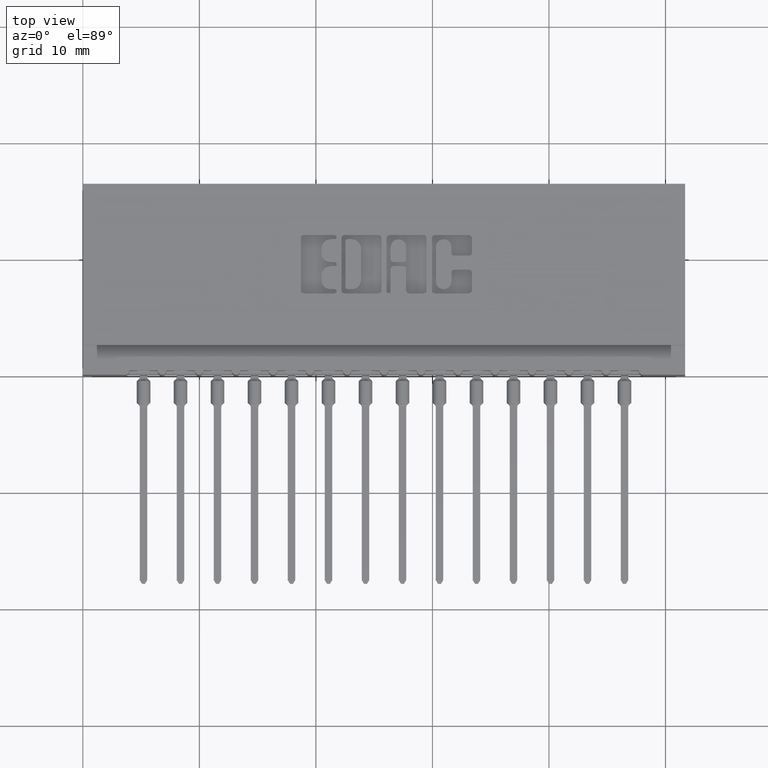
[diagram: clean part render]
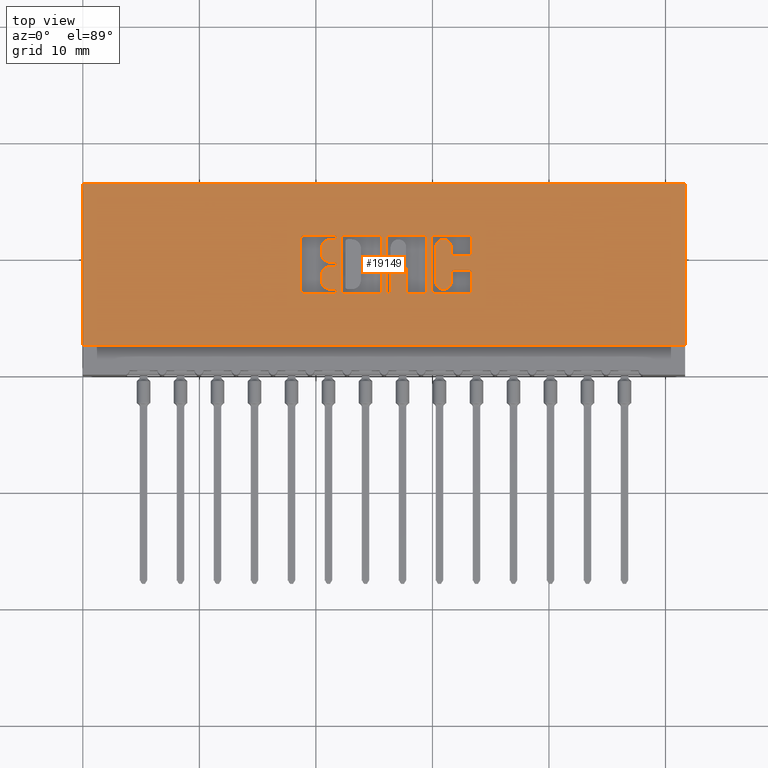
[diagram: same view with one face highlighted and labeled with its STEP entity id]
A machine part, top view. The second image highlights one B-rep face of the part: STEP entity #19149.
In plain terms, the highlighted planar face has unit normal (0, 0, -1).
Its self-contained STEP definition (entity closure, byte-faithful):
#17 = DIRECTION ( 'NONE',  ( -1.000000000000000000, 0.0000000000000000000, 0.0000000000000000000 ) ) ;
#35 = CARTESIAN_POINT ( 'NONE',  ( 1.035904381632127391, 0.4706567020380066912, 0.0000000000000000000 ) ) ;
#109 = ORIENTED_EDGE ( 'NONE', *, *, #229, .F. ) ;
#229 = EDGE_CURVE ( 'NONE', #14462, #15517, #14597, .T. ) ;
#325 = ORIENTED_EDGE ( 'NONE', *, *, #16936, .F. ) ;
#335 = VERTEX_POINT ( 'NONE', #23116 ) ;
#340 = DIRECTION ( 'NONE',  ( -1.000000000000000000, 0.0000000000000000000, 0.0000000000000000000 ) ) ;
#404 = ORIENTED_EDGE ( 'NONE', *, *, #16473, .F. ) ;
#436 = LINE ( 'NONE', #19754, #6121 ) ;
#438 = DIRECTION ( 'NONE',  ( 1.000000000000000000, 0.0000000000000000000, 0.0000000000000000000 ) ) ;
#460 = ORIENTED_EDGE ( 'NONE', *, *, #17493, .T. ) ;
#509 = CIRCLE ( 'NONE', #21210, 0.009815670203805935967 ) ;
#571 = DIRECTION ( 'NONE',  ( 1.000000000000000000, 0.0000000000000000000, 0.0000000000000000000 ) ) ;
#613 = CARTESIAN_POINT ( 'NONE',  ( 1.192464321382818548, 0.4306578459575296502, 0.0000000000000000000 ) ) ;
#683 = ORIENTED_EDGE ( 'NONE', *, *, #23390, .T. ) ;
#706 = CARTESIAN_POINT ( 'NONE',  ( 1.008911288571669118, 0.2841589681657900046, 0.0000000000000000000 ) ) ;
#707 = DIRECTION ( 'NONE',  ( -1.000000000000000000, -0.0000000000000000000, -0.0000000000000000000 ) ) ;
#716 = ORIENTED_EDGE ( 'NONE', *, *, #21715, .F. ) ;
#741 = VERTEX_POINT ( 'NONE', #706 ) ;
#748 = CARTESIAN_POINT ( 'NONE',  ( 2.035000000000000142, 0.6449999999999999067, 0.0000000000000000000 ) ) ;
#778 = VERTEX_POINT ( 'NONE', #17868 ) ;
#844 = VECTOR ( 'NONE', #22642, 39.37007874015748143 ) ;
#887 = AXIS2_PLACEMENT_3D ( 'NONE', #4712, #12462, #10437 ) ;
#975 = CARTESIAN_POINT ( 'NONE',  ( 1.314178631909940220, 0.3440345564089705155, 0.0000000000000000000 ) ) ;
#1009 = CARTESIAN_POINT ( 'NONE',  ( 0.8832707099630102698, 0.4608410318342101575, 0.0000000000000000000 ) ) ;
#1023 = VERTEX_POINT ( 'NONE', #18860 ) ;
#1120 = DIRECTION ( 'NONE',  ( -0.0000000000000000000, -1.000000000000000000, -0.0000000000000000000 ) ) ;
#1129 = DIRECTION ( 'NONE',  ( -0.0000000000000000000, 0.0000000000000000000, 1.000000000000000000 ) ) ;
#1134 = ORIENTED_EDGE ( 'NONE', *, *, #3857, .F. ) ;
#1163 = AXIS2_PLACEMENT_3D ( 'NONE', #16024, #19565, #10033 ) ;
#1211 = CARTESIAN_POINT ( 'NONE',  ( 1.304362961706134305, 0.2841589681657900046, 0.0000000000000000000 ) ) ;
#1255 = VERTEX_POINT ( 'NONE', #7904 ) ;
#1260 = CARTESIAN_POINT ( 'NONE',  ( 1.314178631909972195, 0.4112718973050387139, 0.0000000000000000000 ) ) ;
#1272 = LINE ( 'NONE', #4836, #24042 ) ;
#1281 = VERTEX_POINT ( 'NONE', #4977 ) ;
#1310 = CARTESIAN_POINT ( 'NONE',  ( -3.425805886175743989E-14, 0.2880852362472091088, 0.0000000000000000000 ) ) ;
#1344 = DIRECTION ( 'NONE',  ( 1.000000000000000000, 0.0000000000000000000, 0.0000000000000000000 ) ) ;
#1385 = ORIENTED_EDGE ( 'NONE', *, *, #24246, .F. ) ;
#1419 = AXIS2_PLACEMENT_3D ( 'NONE', #11278, #21209, #19034 ) ;
#1453 = DIRECTION ( 'NONE',  ( 1.000000000000000000, 0.0000000000000000000, 0.0000000000000000000 ) ) ;
#1511 = ORIENTED_EDGE ( 'NONE', *, *, #13187, .F. ) ;
#1720 = CARTESIAN_POINT ( 'NONE',  ( 1.304362961706153179, 0.3440345564089705155, 0.0000000000000000000 ) ) ;
#1741 = CARTESIAN_POINT ( 'NONE',  ( 0.8506336065353100606, 0.3793709691426839226, 0.0000000000000000000 ) ) ;
#1744 = DIRECTION ( 'NONE',  ( 1.000000000000000000, 0.0000000000000000000, 0.0000000000000000000 ) ) ;
#1756 = EDGE_CURVE ( 'NONE', #9989, #1023, #15081, .T. ) ;
#1792 = LINE ( 'NONE', #3563, #16624 ) ;
#1847 = AXIS2_PLACEMENT_3D ( 'NONE', #8691, #16453, #3088 ) ;
#1901 = DIRECTION ( 'NONE',  ( -0.0000000000000000000, 0.0000000000000000000, 1.000000000000000000 ) ) ;
#2082 = AXIS2_PLACEMENT_3D ( 'NONE', #6852, #12702, #22507 ) ;
#2092 = VERTEX_POINT ( 'NONE', #6414 ) ;
#2111 = EDGE_CURVE ( 'NONE', #18306, #19352, #6167, .T. ) ;
#2150 = FACE_OUTER_BOUND ( 'NONE', #22561, .T. ) ;
#2166 = DIRECTION ( 'NONE',  ( -1.000000000000000000, -3.530861605407645268E-14, 0.0000000000000000000 ) ) ;
#2308 = CARTESIAN_POINT ( 'NONE',  ( 0.8057269153529096339, 0.4107811137948584324, 0.0000000000000000000 ) ) ;
#2326 = DIRECTION ( 'NONE',  ( -0.0000000000000000000, 0.0000000000000000000, 1.000000000000000000 ) ) ;
#2400 = CARTESIAN_POINT ( 'NONE',  ( 0.8734550397591692716, 0.4608410318342101575, 0.0000000000000000000 ) ) ;
#2484 = DIRECTION ( 'NONE',  ( 1.000000000000000000, 0.0000000000000000000, 0.0000000000000000000 ) ) ;
#2513 = DIRECTION ( 'NONE',  ( -0.0000000000000000000, 0.0000000000000000000, 1.000000000000000000 ) ) ;
#2596 = DIRECTION ( 'NONE',  ( 0.0000000000000000000, 1.000000000000000000, -0.0000000000000000000 ) ) ;
#2738 = ORIENTED_EDGE ( 'NONE', *, *, #11888, .T. ) ;
#2820 = VECTOR ( 'NONE', #1120, 39.37007874015748143 ) ;
#2827 = LINE ( 'NONE', #14643, #21955 ) ;
#2860 = ORIENTED_EDGE ( 'NONE', *, *, #21326, .F. ) ;
#2956 = EDGE_CURVE ( 'NONE', #2092, #17873, #21491, .T. ) ;
#2961 = CARTESIAN_POINT ( 'NONE',  ( 0.8506336065353513609, 0.4706567020380327815, 0.0000000000000000000 ) ) ;
#2988 = VERTEX_POINT ( 'NONE', #1260 ) ;
#2997 = CARTESIAN_POINT ( 'NONE',  ( 1.192464321382818548, 0.3143421540424530258, 0.0000000000000000000 ) ) ;
#3088 = DIRECTION ( 'NONE',  ( 1.000000000000000000, 0.0000000000000000000, 0.0000000000000000000 ) ) ;
#3103 = LINE ( 'NONE', #3974, #16997 ) ;
#3131 = CARTESIAN_POINT ( 'NONE',  ( 1.244978156973166161, 0.4112718973050452642, 0.0000000000000000000 ) ) ;
#3201 = EDGE_CURVE ( 'NONE', #23419, #14627, #19525, .T. ) ;
#3203 = VERTEX_POINT ( 'NONE', #20709 ) ;
#3301 = VERTEX_POINT ( 'NONE', #17528 ) ;
#3303 = DIRECTION ( 'NONE',  ( -1.000000000000000000, 0.0000000000000000000, 0.0000000000000000000 ) ) ;
#3381 = CARTESIAN_POINT ( 'NONE',  ( 0.8057269153529278416, 0.3194953808994904221, 0.0000000000000000000 ) ) ;
#3401 = CARTESIAN_POINT ( 'NONE',  ( 1.304362961706166946, 0.4014562271012335204, 0.0000000000000000000 ) ) ;
#3427 = LINE ( 'NONE', #10925, #17373 ) ;
#3440 = DIRECTION ( 'NONE',  ( 1.000000000000000000, 0.0000000000000000000, 0.0000000000000000000 ) ) ;
#3476 = CARTESIAN_POINT ( 'NONE',  ( 0.0000000000000000000, 0.1000000000000000056, 0.0000000000000000000 ) ) ;
#3480 = CARTESIAN_POINT ( 'NONE',  ( 1.254793827176966969, 0.3440345564089696273, 0.0000000000000000000 ) ) ;
#3563 = CARTESIAN_POINT ( 'NONE',  ( 1.026088711428331024, 0.0000000000000000000, 0.0000000000000000000 ) ) ;
#3615 = VERTEX_POINT ( 'NONE', #4495 ) ;
#3682 = VECTOR ( 'NONE', #11130, 39.37007874015748143 ) ;
#3742 = DIRECTION ( 'NONE',  ( -1.000000000000000000, 0.0000000000000000000, 0.0000000000000000000 ) ) ;
#3748 = EDGE_CURVE ( 'NONE', #6487, #4584, #21587, .T. ) ;
#3773 = LINE ( 'NONE', #15597, #16186 ) ;
#3857 = EDGE_CURVE ( 'NONE', #19968, #16552, #22864, .T. ) ;
#3974 = CARTESIAN_POINT ( 'NONE',  ( 2.035000000000000142, 0.6449999999999999067, 0.0000000000000000000 ) ) ;
#3981 = EDGE_CURVE ( 'NONE', #21643, #16573, #4942, .T. ) ;
#4028 = DIRECTION ( 'NONE',  ( 0.0000000000000000000, 1.000000000000000000, -0.0000000000000000000 ) ) ;
#4067 = CARTESIAN_POINT ( 'NONE',  ( -1.290985506876488798E-14, 0.3656290308573115766, 0.0000000000000000000 ) ) ;
#4074 = ORIENTED_EDGE ( 'NONE', *, *, #21823, .F. ) ;
#4079 = AXIS2_PLACEMENT_3D ( 'NONE', #13474, #1901, #17677 ) ;
#4137 = LINE ( 'NONE', #13790, #20096 ) ;
#4320 = CARTESIAN_POINT ( 'NONE',  ( 1.026088711428331024, 0.4608410318342101575, 0.0000000000000000000 ) ) ;
#4356 = VERTEX_POINT ( 'NONE', #24621 ) ;
#4444 = VECTOR ( 'NONE', #340, 39.37007874015748143 ) ;
#4495 = CARTESIAN_POINT ( 'NONE',  ( 1.151729290037010633, 0.2743432979619847001, 0.0000000000000000000 ) ) ;
#4497 = VECTOR ( 'NONE', #24901, 39.37007874015748143 ) ;
#4516 = CARTESIAN_POINT ( 'NONE',  ( 1.151729290037010633, 0.2841589681657809008, 0.0000000000000000000 ) ) ;
#4564 = CIRCLE ( 'NONE', #4957, 0.03141014465221578927 ) ;
#4584 = VERTEX_POINT ( 'NONE', #10494 ) ;
#4633 = AXIS2_PLACEMENT_3D ( 'NONE', #23833, #6397, #438 ) ;
#4641 = DIRECTION ( 'NONE',  ( 0.0000000000000000000, -1.000000000000000000, 0.0000000000000000000 ) ) ;
#4712 = CARTESIAN_POINT ( 'NONE',  ( 1.049646319917450388, 0.3558133606535456295, 0.0000000000000000000 ) ) ;
#4799 = DIRECTION ( 'NONE',  ( -0.0000000000000000000, 0.0000000000000000000, 1.000000000000000000 ) ) ;
#4837 = EDGE_CURVE ( 'NONE', #15517, #20282, #3103, .T. ) ;
#4836 = CARTESIAN_POINT ( 'NONE',  ( 1.192464321382818548, 0.0000000000000000000, 0.0000000000000000000 ) ) ;
#4941 = LINE ( 'NONE', #5069, #2820 ) ;
#4942 = CIRCLE ( 'NONE', #17575, 0.009815670203795690690 ) ;
#4957 = AXIS2_PLACEMENT_3D ( 'NONE', #13003, #5137, #20521 ) ;
#4977 = CARTESIAN_POINT ( 'NONE',  ( 0.8371370600051254440, 0.4569147637527357642, 0.0000000000000000000 ) ) ;
#5069 = CARTESIAN_POINT ( 'NONE',  ( 0.0000000000000000000, 0.6449999999999999067, 0.0000000000000000000 ) ) ;
#5137 = DIRECTION ( 'NONE',  ( -0.0000000000000000000, 0.0000000000000000000, 1.000000000000000000 ) ) ;
#5199 = DIRECTION ( 'NONE',  ( -0.0000000000000000000, 0.0000000000000000000, 1.000000000000000000 ) ) ;
#5200 = VERTEX_POINT ( 'NONE', #9172 ) ;
#5254 = ORIENTED_EDGE ( 'NONE', *, *, #20702, .F. ) ;
#5346 = EDGE_CURVE ( 'NONE', #8530, #5200, #23628, .T. ) ;
#5383 = ORIENTED_EDGE ( 'NONE', *, *, #18476, .F. ) ;
#5562 = EDGE_CURVE ( 'NONE', #17873, #18773, #11439, .T. ) ;
#5584 = ORIENTED_EDGE ( 'NONE', *, *, #2111, .F. ) ;
#5606 = EDGE_CURVE ( 'NONE', #12300, #12085, #9817, .T. ) ;
#5620 = CARTESIAN_POINT ( 'NONE',  ( 2.035000000000000142, 0.1000000000000000056, 0.0000000000000000000 ) ) ;
#5714 = VECTOR ( 'NONE', #21179, 39.37007874015748143 ) ;
#5776 = CARTESIAN_POINT ( 'NONE',  ( 0.8734550397591692716, 0.2841589681657900046, 0.0000000000000000000 ) ) ;
#5832 = CARTESIAN_POINT ( 'NONE',  ( 1.314178631909972195, 0.4608410318341948919, 0.0000000000000000000 ) ) ;
#5862 = EDGE_CURVE ( 'NONE', #3301, #25140, #509, .T. ) ;
#5932 = DIRECTION ( 'NONE',  ( -0.0000000000000000000, 0.0000000000000000000, 1.000000000000000000 ) ) ;
#6064 = VERTEX_POINT ( 'NONE', #3131 ) ;
#6099 = DIRECTION ( 'NONE',  ( 1.000000000000000000, 0.0000000000000000000, 0.0000000000000000000 ) ) ;
#6121 = VECTOR ( 'NONE', #2596, 39.37007874015748143 ) ;
#6166 = AXIS2_PLACEMENT_3D ( 'NONE', #24295, #8911, #3440 ) ;
#6167 = LINE ( 'NONE', #13792, #10420 ) ;
#6173 = ORIENTED_EDGE ( 'NONE', *, *, #21425, .T. ) ;
#6185 = DIRECTION ( 'NONE',  ( 1.000000000000000000, 0.0000000000000000000, 0.0000000000000000000 ) ) ;
#6314 = CARTESIAN_POINT ( 'NONE',  ( -1.976217237646387043E-15, 0.2743432979619796486, 0.0000000000000000000 ) ) ;
#6341 = ORIENTED_EDGE ( 'NONE', *, *, #5862, .F. ) ;
#6350 = ORIENTED_EDGE ( 'NONE', *, *, #23764, .F. ) ;
#6397 = DIRECTION ( 'NONE',  ( -0.0000000000000000000, 0.0000000000000000000, 1.000000000000000000 ) ) ;
#6410 = ORIENTED_EDGE ( 'NONE', *, *, #8596, .F. ) ;
#6414 = CARTESIAN_POINT ( 'NONE',  ( 1.082528815100188169, 0.3656290308573498238, 0.0000000000000000000 ) ) ;
#6447 = VECTOR ( 'NONE', #571, 39.37007874015748143 ) ;
#6487 = VERTEX_POINT ( 'NONE', #7515 ) ;
#6553 = VECTOR ( 'NONE', #4028, 39.37007874015748143 ) ;
#6562 = CARTESIAN_POINT ( 'NONE',  ( 0.0000000000000000000, 0.3793709691426839226, 0.0000000000000000000 ) ) ;
#6601 = ORIENTED_EDGE ( 'NONE', *, *, #24822, .T. ) ;
#6602 = ORIENTED_EDGE ( 'NONE', *, *, #10854, .F. ) ;
#6852 = CARTESIAN_POINT ( 'NONE',  ( 1.304362961706132085, 0.4608410318342109901, 0.0000000000000000000 ) ) ;
#6855 = ORIENTED_EDGE ( 'NONE', *, *, #10706, .F. ) ;
#6877 = DIRECTION ( 'NONE',  ( 1.000000000000000000, 0.0000000000000000000, 0.0000000000000000000 ) ) ;
#6911 = AXIS2_PLACEMENT_3D ( 'NONE', #21124, #13488, #6099 ) ;
#7021 = CARTESIAN_POINT ( 'NONE',  ( 0.8371370600051096789, 0.2880852362473086403, 0.0000000000000000000 ) ) ;
#7045 = ORIENTED_EDGE ( 'NONE', *, *, #23882, .F. ) ;
#7077 = DIRECTION ( 'NONE',  ( 0.0000000000000000000, 1.000000000000000000, -0.0000000000000000000 ) ) ;
#7093 = ORIENTED_EDGE ( 'NONE', *, *, #1756, .F. ) ;
#7120 = EDGE_CURVE ( 'NONE', #741, #19588, #9495, .T. ) ;
#7273 = CIRCLE ( 'NONE', #9709, 0.03141014465217440571 ) ;
#7373 = DIRECTION ( 'NONE',  ( 0.0000000000000000000, 1.000000000000000000, -0.0000000000000000000 ) ) ;
#7377 = CIRCLE ( 'NONE', #6166, 0.009815670203822599721 ) ;
#7515 = CARTESIAN_POINT ( 'NONE',  ( 1.254793827176966969, 0.3538502266127576124, 0.0000000000000000000 ) ) ;
#7535 = CARTESIAN_POINT ( 'NONE',  ( 1.188538053301299469, 0.4706567020380511002, 0.0000000000000000000 ) ) ;
#7660 = DIRECTION ( 'NONE',  ( -0.0000000000000000000, -1.000000000000000000, -0.0000000000000000000 ) ) ;
#7753 = EDGE_CURVE ( 'NONE', #18670, #10439, #15136, .T. ) ;
#7800 = LINE ( 'NONE', #21672, #6447 ) ;
#7823 = EDGE_CURVE ( 'NONE', #4584, #14537, #23022, .T. ) ;
#7897 = CIRCLE ( 'NONE', #12781, 0.02625691779517380642 ) ;
#7904 = CARTESIAN_POINT ( 'NONE',  ( 1.188538053301265274, 0.2743432979619832568, 0.0000000000000000000 ) ) ;
#7950 = EDGE_CURVE ( 'NONE', #10439, #2092, #10584, .T. ) ;
#8091 = VECTOR ( 'NONE', #7077, 39.37007874015748143 ) ;
#8121 = PLANE ( 'NONE',  #1163 ) ;
#8141 = ORIENTED_EDGE ( 'NONE', *, *, #5562, .T. ) ;
#8297 = LINE ( 'NONE', #8543, #15100 ) ;
#8368 = EDGE_LOOP ( 'NONE', ( #21116, #5584, #11753, #6855, #6601, #24750, #683, #17806, #12428, #404, #6350, #5383, #10284, #716, #13989, #25086, #17328, #13864, #17070, #17253 ) ) ;
#8485 = VERTEX_POINT ( 'NONE', #613 ) ;
#8509 = DIRECTION ( 'NONE',  ( 1.000000000000000000, 0.0000000000000000000, 0.0000000000000000000 ) ) ;
#8530 = VERTEX_POINT ( 'NONE', #16242 ) ;
#8543 = CARTESIAN_POINT ( 'NONE',  ( -0.0000000000000000000, 0.2743432979619832568, 0.0000000000000000000 ) ) ;
#8570 = ORIENTED_EDGE ( 'NONE', *, *, #24690, .T. ) ;
#8596 = EDGE_CURVE ( 'NONE', #16007, #24718, #11003, .T. ) ;
#8640 = CARTESIAN_POINT ( 'NONE',  ( 1.218721239177992244, 0.4306578459575296502, 0.0000000000000000000 ) ) ;
#8691 = CARTESIAN_POINT ( 'NONE',  ( 0.8371370600050840327, 0.3342188862052006271, 0.0000000000000000000 ) ) ;
#8722 = CARTESIAN_POINT ( 'NONE',  ( 1.008911288571669118, 0.4608410318342101575, 0.0000000000000000000 ) ) ;
#8756 = DIRECTION ( 'NONE',  ( -0.0000000000000000000, 0.0000000000000000000, 1.000000000000000000 ) ) ;
#8770 = EDGE_CURVE ( 'NONE', #12566, #3301, #15700, .T. ) ;
#8785 = EDGE_CURVE ( 'NONE', #18773, #14627, #21305, .T. ) ;
#8911 = DIRECTION ( 'NONE',  ( -0.0000000000000000000, 0.0000000000000000000, 1.000000000000000000 ) ) ;
#8963 = DIRECTION ( 'NONE',  ( -0.0000000000000000000, 0.0000000000000000000, 1.000000000000000000 ) ) ;
#8974 = AXIS2_PLACEMENT_3D ( 'NONE', #18352, #12000, #12252 ) ;
#9034 = ORIENTED_EDGE ( 'NONE', *, *, #22154, .F. ) ;
#9078 = ORIENTED_EDGE ( 'NONE', *, *, #5346, .F. ) ;
#9105 = VERTEX_POINT ( 'NONE', #3476 ) ;
#9144 = ORIENTED_EDGE ( 'NONE', *, *, #8785, .T. ) ;
#9148 = DIRECTION ( 'NONE',  ( 0.0000000000000000000, 1.000000000000000000, -0.0000000000000000000 ) ) ;
#9166 = EDGE_CURVE ( 'NONE', #17629, #16179, #15543, .T. ) ;
#9172 = CARTESIAN_POINT ( 'NONE',  ( 0.8506336064154144117, 0.2880852362473102501, 0.0000000000000000000 ) ) ;
#9173 = VERTEX_POINT ( 'NONE', #7535 ) ;
#9178 = CIRCLE ( 'NONE', #14467, 0.009815670203841039831 ) ;
#9208 = VERTEX_POINT ( 'NONE', #35 ) ;
#9271 = VECTOR ( 'NONE', #7373, 39.37007874015748143 ) ;
#9385 = VERTEX_POINT ( 'NONE', #12599 ) ;
#9405 = AXIS2_PLACEMENT_3D ( 'NONE', #10180, #19716, #15909 ) ;
#9495 = LINE ( 'NONE', #21198, #8091 ) ;
#9525 = AXIS2_PLACEMENT_3D ( 'NONE', #12192, #10032, #10535 ) ;
#9580 = EDGE_CURVE ( 'NONE', #23419, #13675, #1792, .T. ) ;
#9648 = CARTESIAN_POINT ( 'NONE',  ( 1.304362961706166946, 0.4112718973050387139, 0.0000000000000000000 ) ) ;
#9709 = AXIS2_PLACEMENT_3D ( 'NONE', #19793, #2513, #6185 ) ;
#9754 = VECTOR ( 'NONE', #19001, 39.37007874015748143 ) ;
#9817 = CIRCLE ( 'NONE', #2082, 0.009815670203840221042 ) ;
#9827 = CARTESIAN_POINT ( 'NONE',  ( 1.102160155507785788, 0.2743432979619847001, 0.0000000000000000000 ) ) ;
#9886 = AXIS2_PLACEMENT_3D ( 'NONE', #23113, #11533, #19160 ) ;
#9989 = VERTEX_POINT ( 'NONE', #19264 ) ;
#10030 = ORIENTED_EDGE ( 'NONE', *, *, #4837, .F. ) ;
#10032 = DIRECTION ( 'NONE',  ( -0.0000000000000000000, 0.0000000000000000000, 1.000000000000000000 ) ) ;
#10033 = DIRECTION ( 'NONE',  ( -1.000000000000000000, 0.0000000000000000000, -0.0000000000000000000 ) ) ;
#10086 = VERTEX_POINT ( 'NONE', #14315 ) ;
#10159 = DIRECTION ( 'NONE',  ( 1.000000000000000000, 0.0000000000000000000, 0.0000000000000000000 ) ) ;
#10180 = CARTESIAN_POINT ( 'NONE',  ( 0.8506336065353355957, 0.2812142671046480302, 0.0000000000000000000 ) ) ;
#10284 = ORIENTED_EDGE ( 'NONE', *, *, #17294, .F. ) ;
#10392 = CARTESIAN_POINT ( 'NONE',  ( 1.254793827176977628, 0.4014562271012336869, 0.0000000000000000000 ) ) ;
#10420 = VECTOR ( 'NONE', #13927, 39.37007874015748143 ) ;
#10437 = DIRECTION ( 'NONE',  ( 1.000000000000000000, 0.0000000000000000000, 0.0000000000000000000 ) ) ;
#10439 = VERTEX_POINT ( 'NONE', #24966 ) ;
#10494 = CARTESIAN_POINT ( 'NONE',  ( 1.244978156973179262, 0.3440345564089687391, 0.0000000000000000000 ) ) ;
#10530 = DIRECTION ( 'NONE',  ( -0.0000000000000000000, 0.0000000000000000000, 1.000000000000000000 ) ) ;
#10535 = DIRECTION ( 'NONE',  ( 1.000000000000000000, 0.0000000000000000000, 0.0000000000000000000 ) ) ;
#10553 = ORIENTED_EDGE ( 'NONE', *, *, #18144, .T. ) ;
#10584 = CIRCLE ( 'NONE', #4079, 0.009815670203796920609 ) ;
#10704 = AXIS2_PLACEMENT_3D ( 'NONE', #1009, #8756, #18919 ) ;
#10706 = EDGE_CURVE ( 'NONE', #23683, #6064, #2827, .T. ) ;
#10854 = EDGE_CURVE ( 'NONE', #17594, #13397, #20314, .T. ) ;
#10921 = CIRCLE ( 'NONE', #24344, 0.009815670203811535655 ) ;
#10925 = CARTESIAN_POINT ( 'NONE',  ( 0.0000000000000000000, 0.3538502266127576124, 0.0000000000000000000 ) ) ;
#10961 = DIRECTION ( 'NONE',  ( -1.000000000000000000, -1.189163988687022540E-13, 0.0000000000000000000 ) ) ;
#10971 = CARTESIAN_POINT ( 'NONE',  ( 0.7463421106199185084, 0.2743432979619850332, 0.0000000000000000000 ) ) ;
#11003 = LINE ( 'NONE', #14570, #3682 ) ;
#11004 = CIRCLE ( 'NONE', #8974, 0.03141014465218178175 ) ;
#11130 = DIRECTION ( 'NONE',  ( -1.000000000000000000, 0.0000000000000000000, 0.0000000000000000000 ) ) ;
#11162 = EDGE_CURVE ( 'NONE', #16552, #4356, #19175, .T. ) ;
#11240 = ORIENTED_EDGE ( 'NONE', *, *, #23212, .F. ) ;
#11250 = CARTESIAN_POINT ( 'NONE',  ( 0.0000000000000000000, 0.4706567020380511002, 0.0000000000000000000 ) ) ;
#11256 = CARTESIAN_POINT ( 'NONE',  ( 0.7365264404161154799, 0.0000000000000000000, 0.0000000000000000000 ) ) ;
#11278 = CARTESIAN_POINT ( 'NONE',  ( 1.218721239177998905, 0.3143421540424530258, 0.0000000000000000000 ) ) ;
#11371 = CARTESIAN_POINT ( 'NONE',  ( 0.0000000000000000000, 0.4706567020380327815, 0.0000000000000000000 ) ) ;
#11439 = CIRCLE ( 'NONE', #887, 0.009815670203803203778 ) ;
#11509 = EDGE_CURVE ( 'NONE', #24828, #17620, #11004, .T. ) ;
#11533 = DIRECTION ( 'NONE',  ( -0.0000000000000000000, 0.0000000000000000000, 1.000000000000000000 ) ) ;
#11535 = VECTOR ( 'NONE', #17551, 39.37007874015748143 ) ;
#11563 = EDGE_CURVE ( 'NONE', #2988, #12300, #436, .T. ) ;
#11665 = ORIENTED_EDGE ( 'NONE', *, *, #15286, .F. ) ;
#11712 = DIRECTION ( 'NONE',  ( 0.0000000000000000000, -1.000000000000000000, 0.0000000000000000000 ) ) ;
#11753 = ORIENTED_EDGE ( 'NONE', *, *, #18039, .F. ) ;
#11780 = CARTESIAN_POINT ( 'NONE',  ( 0.8506336065353355957, 0.2812142671046480302, 0.0000000000000000000 ) ) ;
#11813 = ORIENTED_EDGE ( 'NONE', *, *, #14325, .F. ) ;
#11888 = EDGE_CURVE ( 'NONE', #3615, #22746, #13738, .T. ) ;
#11890 = DIRECTION ( 'NONE',  ( 0.0000000000000000000, 1.000000000000000000, -0.0000000000000000000 ) ) ;
#11912 = CARTESIAN_POINT ( 'NONE',  ( 0.8575045756779736683, 0.3725000000000204259, 0.0000000000000000000 ) ) ;
#11922 = CIRCLE ( 'NONE', #9886, 0.009815670203806754757 ) ;
#12000 = DIRECTION ( 'NONE',  ( -0.0000000000000000000, 0.0000000000000000000, 1.000000000000000000 ) ) ;
#12057 = ORIENTED_EDGE ( 'NONE', *, *, #18405, .F. ) ;
#12085 = VERTEX_POINT ( 'NONE', #18321 ) ;
#12152 = EDGE_CURVE ( 'NONE', #17195, #8485, #1272, .T. ) ;
#12192 = CARTESIAN_POINT ( 'NONE',  ( 1.188538053301299469, 0.4608410318342101575, 0.0000000000000000000 ) ) ;
#12252 = DIRECTION ( 'NONE',  ( 1.000000000000000000, 0.0000000000000000000, 0.0000000000000000000 ) ) ;
#12300 = VERTEX_POINT ( 'NONE', #5832 ) ;
#12360 = DIRECTION ( 'NONE',  ( 1.000000000000000000, 0.0000000000000000000, 0.0000000000000000000 ) ) ;
#12394 = DIRECTION ( 'NONE',  ( 1.000000000000000000, 0.0000000000000000000, 0.0000000000000000000 ) ) ;
#12417 = CARTESIAN_POINT ( 'NONE',  ( 1.026088711428331024, 0.2812142671046480302, 0.0000000000000000000 ) ) ;
#12428 = ORIENTED_EDGE ( 'NONE', *, *, #3748, .F. ) ;
#12462 = DIRECTION ( 'NONE',  ( -0.0000000000000000000, 0.0000000000000000000, 1.000000000000000000 ) ) ;
#12506 = ORIENTED_EDGE ( 'NONE', *, *, #3201, .F. ) ;
#12530 = CARTESIAN_POINT ( 'NONE',  ( 1.314178631909940220, 0.0000000000000000000, 0.0000000000000000000 ) ) ;
#12550 = DIRECTION ( 'NONE',  ( 1.000000000000000000, 0.0000000000000000000, 0.0000000000000000000 ) ) ;
#12566 = VERTEX_POINT ( 'NONE', #16753 ) ;
#12599 = CARTESIAN_POINT ( 'NONE',  ( 0.8506336064154144117, 0.2743432979619857548, 0.0000000000000000000 ) ) ;
#12624 = EDGE_CURVE ( 'NONE', #22862, #17594, #24385, .T. ) ;
#12643 = VECTOR ( 'NONE', #17, 39.37007874015748143 ) ;
#12677 = CARTESIAN_POINT ( 'NONE',  ( 0.8506336065353513609, 0.4637857328953863267, 0.0000000000000000000 ) ) ;
#12693 = VERTEX_POINT ( 'NONE', #1741 ) ;
#12702 = DIRECTION ( 'NONE',  ( -0.0000000000000000000, 0.0000000000000000000, 1.000000000000000000 ) ) ;
#12767 = CIRCLE ( 'NONE', #16823, 0.006870969142663594688 ) ;
#12781 = AXIS2_PLACEMENT_3D ( 'NONE', #8640, #24036, #8509 ) ;
#12811 = DIRECTION ( 'NONE',  ( 1.000000000000000000, 0.0000000000000000000, 0.0000000000000000000 ) ) ;
#12827 = ORIENTED_EDGE ( 'NONE', *, *, #25087, .F. ) ;
#12943 = DIRECTION ( 'NONE',  ( 1.000000000000000000, 0.0000000000000000000, 0.0000000000000000000 ) ) ;
#13003 = CARTESIAN_POINT ( 'NONE',  ( 0.8371370600051254440, 0.4255046191005198430, 0.0000000000000000000 ) ) ;
#13127 = CARTESIAN_POINT ( 'NONE',  ( 0.8371370600050840327, 0.3793709691426839226, 0.0000000000000000000 ) ) ;
#13173 = VECTOR ( 'NONE', #11712, 39.37007874015748143 ) ;
#13187 = EDGE_CURVE ( 'NONE', #4356, #741, #16807, .T. ) ;
#13397 = VERTEX_POINT ( 'NONE', #2961 ) ;
#13474 = CARTESIAN_POINT ( 'NONE',  ( 1.082528815100187725, 0.3558133606535528459, 0.0000000000000000000 ) ) ;
#13488 = DIRECTION ( 'NONE',  ( -0.0000000000000000000, 0.0000000000000000000, 1.000000000000000000 ) ) ;
#13533 = DIRECTION ( 'NONE',  ( -0.0000000000000000000, 0.0000000000000000000, 1.000000000000000000 ) ) ;
#13593 = DIRECTION ( 'NONE',  ( -0.0000000000000000000, 0.0000000000000000000, 1.000000000000000000 ) ) ;
#13597 = CARTESIAN_POINT ( 'NONE',  ( 1.161544960240806779, 0.0000000000000000000, 0.0000000000000000000 ) ) ;
#13675 = VERTEX_POINT ( 'NONE', #4320 ) ;
#13676 = EDGE_CURVE ( 'NONE', #9173, #17629, #21713, .T. ) ;
#13688 = DIRECTION ( 'NONE',  ( 1.000000000000000000, 0.0000000000000000000, 0.0000000000000000000 ) ) ;
#13713 = FACE_BOUND ( 'NONE', #19807, .T. ) ;
#13738 = LINE ( 'NONE', #21504, #12643 ) ;
#13742 = ORIENTED_EDGE ( 'NONE', *, *, #11509, .T. ) ;
#13790 = CARTESIAN_POINT ( 'NONE',  ( 0.8057269153529096339, 0.0000000000000000000, 0.0000000000000000000 ) ) ;
#13792 = CARTESIAN_POINT ( 'NONE',  ( -0.0000000000000000000, 0.4014562271012336869, 0.0000000000000000000 ) ) ;
#13855 = EDGE_CURVE ( 'NONE', #18380, #12693, #12767, .T. ) ;
#13864 = ORIENTED_EDGE ( 'NONE', *, *, #19824, .F. ) ;
#13905 = AXIS2_PLACEMENT_3D ( 'NONE', #24523, #1129, #18672 ) ;
#13927 = DIRECTION ( 'NONE',  ( 1.000000000000000000, 0.0000000000000000000, 0.0000000000000000000 ) ) ;
#13989 = ORIENTED_EDGE ( 'NONE', *, *, #23263, .F. ) ;
#14089 = VERTEX_POINT ( 'NONE', #22088 ) ;
#14173 = CARTESIAN_POINT ( 'NONE',  ( 1.102160155507788009, 0.2841589681657878952, 0.0000000000000000000 ) ) ;
#14176 = LINE ( 'NONE', #18121, #24023 ) ;
#14201 = LINE ( 'NONE', #6562, #4444 ) ;
#14232 = CARTESIAN_POINT ( 'NONE',  ( 1.049646319917450388, 0.3656290308573487136, 0.0000000000000000000 ) ) ;
#14253 = AXIS2_PLACEMENT_3D ( 'NONE', #12677, #10530, #18286 ) ;
#14315 = CARTESIAN_POINT ( 'NONE',  ( 0.8057269153529096339, 0.4255046191005198430, 0.0000000000000000000 ) ) ;
#14325 = EDGE_CURVE ( 'NONE', #13397, #3203, #17350, .T. ) ;
#14328 = DIRECTION ( 'NONE',  ( 1.000000000000000000, 7.203446383881645102E-15, 0.0000000000000000000 ) ) ;
#14335 = ORIENTED_EDGE ( 'NONE', *, *, #21224, .F. ) ;
#14437 = VECTOR ( 'NONE', #10961, 39.37007874015748143 ) ;
#14462 = VERTEX_POINT ( 'NONE', #18111 ) ;
#14467 = AXIS2_PLACEMENT_3D ( 'NONE', #22358, #4799, #12550 ) ;
#14496 = ORIENTED_EDGE ( 'NONE', *, *, #18385, .T. ) ;
#14537 = VERTEX_POINT ( 'NONE', #17608 ) ;
#14570 = CARTESIAN_POINT ( 'NONE',  ( 0.0000000000000000000, 0.4706567020380511002, 0.0000000000000000000 ) ) ;
#14597 = LINE ( 'NONE', #22369, #23803 ) ;
#14627 = VERTEX_POINT ( 'NONE', #16565 ) ;
#14635 = EDGE_CURVE ( 'NONE', #5200, #17620, #22184, .T. ) ;
#14643 = CARTESIAN_POINT ( 'NONE',  ( 1.244978156973166161, 0.0000000000000000000, 0.0000000000000000000 ) ) ;
#14679 = EDGE_CURVE ( 'NONE', #9989, #17966, #20115, .T. ) ;
#14686 = AXIS2_PLACEMENT_3D ( 'NONE', #3480, #17085, #1453 ) ;
#14695 = LINE ( 'NONE', #12530, #14956 ) ;
#14783 = CARTESIAN_POINT ( 'NONE',  ( 1.178722383097458692, 0.4608410318342101575, 0.0000000000000000000 ) ) ;
#14863 = CIRCLE ( 'NONE', #22178, 0.009815670203796511215 ) ;
#14870 = ORIENTED_EDGE ( 'NONE', *, *, #9580, .T. ) ;
#14876 = ORIENTED_EDGE ( 'NONE', *, *, #11162, .F. ) ;
#14878 = CARTESIAN_POINT ( 'NONE',  ( 0.8506336065353513609, 0.4569147637527357642, 0.0000000000000000000 ) ) ;
#14956 = VECTOR ( 'NONE', #20546, 39.37007874015748143 ) ;
#15071 = LINE ( 'NONE', #11250, #9754 ) ;
#15081 = LINE ( 'NONE', #22344, #20416 ) ;
#15098 = VERTEX_POINT ( 'NONE', #2400 ) ;
#15100 = VECTOR ( 'NONE', #12360, 39.37007874015748143 ) ;
#15136 = LINE ( 'NONE', #20856, #9271 ) ;
#15286 = EDGE_CURVE ( 'NONE', #9208, #13675, #14863, .T. ) ;
#15367 = ORIENTED_EDGE ( 'NONE', *, *, #7120, .F. ) ;
#15443 = CARTESIAN_POINT ( 'NONE',  ( 1.092344485303984758, 0.2841589681657878952, 0.0000000000000000000 ) ) ;
#15496 = CIRCLE ( 'NONE', #23619, 0.009815670203796237128 ) ;
#15503 = CARTESIAN_POINT ( 'NONE',  ( 0.8832707099629760750, 0.2743432979619832568, 0.0000000000000000000 ) ) ;
#15506 = FACE_BOUND ( 'NONE', #8368, .T. ) ;
#15517 = VERTEX_POINT ( 'NONE', #748 ) ;
#15543 = LINE ( 'NONE', #19474, #21935 ) ;
#15572 = ORIENTED_EDGE ( 'NONE', *, *, #14635, .F. ) ;
#15597 = CARTESIAN_POINT ( 'NONE',  ( -0.0000000000000000000, 0.4569147637527357642, 0.0000000000000000000 ) ) ;
#15604 = CARTESIAN_POINT ( 'NONE',  ( 0.8057269153529278416, 0.0000000000000000000, 0.0000000000000000000 ) ) ;
#15637 = CARTESIAN_POINT ( 'NONE',  ( 0.8832707099630102698, 0.4706567020380511002, 0.0000000000000000000 ) ) ;
#15687 = EDGE_CURVE ( 'NONE', #19588, #16007, #9178, .T. ) ;
#15700 = LINE ( 'NONE', #11256, #5714 ) ;
#15739 = CARTESIAN_POINT ( 'NONE',  ( 0.7463421106199222832, 0.2841589681657900046, 0.0000000000000000000 ) ) ;
#15890 = CARTESIAN_POINT ( 'NONE',  ( 0.8057269153529278416, 0.3342188862052006271, 0.0000000000000000000 ) ) ;
#15909 = DIRECTION ( 'NONE',  ( 1.000000000000000000, 0.0000000000000000000, 0.0000000000000000000 ) ) ;
#16007 = VERTEX_POINT ( 'NONE', #20625 ) ;
#16024 = CARTESIAN_POINT ( 'NONE',  ( 0.0000000000000000000, 0.6449999999999999067, 0.0000000000000000000 ) ) ;
#16160 = ORIENTED_EDGE ( 'NONE', *, *, #14679, .T. ) ;
#16179 = VERTEX_POINT ( 'NONE', #17698 ) ;
#16186 = VECTOR ( 'NONE', #1744, 39.37007874015748143 ) ;
#16242 = CARTESIAN_POINT ( 'NONE',  ( 0.8575045756779977602, 0.2812142671046480302, 0.0000000000000000000 ) ) ;
#16311 = DIRECTION ( 'NONE',  ( -0.0000000000000000000, 0.0000000000000000000, 1.000000000000000000 ) ) ;
#16388 = DIRECTION ( 'NONE',  ( -0.0000000000000000000, 0.0000000000000000000, 1.000000000000000000 ) ) ;
#16413 = AXIS2_PLACEMENT_3D ( 'NONE', #1720, #13533, #21418 ) ;
#16453 = DIRECTION ( 'NONE',  ( -0.0000000000000000000, 0.0000000000000000000, 1.000000000000000000 ) ) ;
#16459 = DIRECTION ( 'NONE',  ( -0.0000000000000000000, 0.0000000000000000000, 1.000000000000000000 ) ) ;
#16473 = EDGE_CURVE ( 'NONE', #335, #6487, #3427, .T. ) ;
#16552 = VERTEX_POINT ( 'NONE', #15503 ) ;
#16565 = CARTESIAN_POINT ( 'NONE',  ( 1.039830649713646915, 0.2812142671046480302, 0.0000000000000000000 ) ) ;
#16573 = VERTEX_POINT ( 'NONE', #17411 ) ;
#16624 = VECTOR ( 'NONE', #16924, 39.37007874015748143 ) ;
#16750 = CIRCLE ( 'NONE', #13905, 0.006870969142663594688 ) ;
#16753 = CARTESIAN_POINT ( 'NONE',  ( 0.7365264404161154799, 0.4608410318342101575, 0.0000000000000000000 ) ) ;
#16783 = CARTESIAN_POINT ( 'NONE',  ( 1.035904381632127391, 0.4608410318342101575, 0.0000000000000000000 ) ) ;
#16807 = CIRCLE ( 'NONE', #4633, 0.009815670203806754757 ) ;
#16823 = AXIS2_PLACEMENT_3D ( 'NONE', #18539, #16388, #24142 ) ;
#16924 = DIRECTION ( 'NONE',  ( 0.0000000000000000000, 1.000000000000000000, -0.0000000000000000000 ) ) ;
#16936 = EDGE_CURVE ( 'NONE', #1281, #22862, #3773, .T. ) ;
#16997 = VECTOR ( 'NONE', #7660, 39.37007874015748143 ) ;
#17070 = ORIENTED_EDGE ( 'NONE', *, *, #5606, .F. ) ;
#17085 = DIRECTION ( 'NONE',  ( -0.0000000000000000000, 0.0000000000000000000, 1.000000000000000000 ) ) ;
#17195 = VERTEX_POINT ( 'NONE', #2997 ) ;
#17253 = ORIENTED_EDGE ( 'NONE', *, *, #11563, .F. ) ;
#17294 = EDGE_CURVE ( 'NONE', #778, #17396, #20250, .T. ) ;
#17328 = ORIENTED_EDGE ( 'NONE', *, *, #13676, .F. ) ;
#17349 = CARTESIAN_POINT ( 'NONE',  ( 1.314178631909940220, 0.2841589681657830102, 0.0000000000000000000 ) ) ;
#17350 = LINE ( 'NONE', #11371, #23771 ) ;
#17373 = VECTOR ( 'NONE', #3303, 39.37007874015748143 ) ;
#17396 = VERTEX_POINT ( 'NONE', #17349 ) ;
#17411 = CARTESIAN_POINT ( 'NONE',  ( 1.151729290037013964, 0.4706567020380066912, 0.0000000000000000000 ) ) ;
#17493 = EDGE_CURVE ( 'NONE', #9208, #16573, #7800, .T. ) ;
#17528 = CARTESIAN_POINT ( 'NONE',  ( 0.7365264404161154799, 0.2841589681657900046, 0.0000000000000000000 ) ) ;
#17547 = FACE_BOUND ( 'NONE', #21342, .T. ) ;
#17551 = DIRECTION ( 'NONE',  ( 0.0000000000000000000, -1.000000000000000000, 0.0000000000000000000 ) ) ;
#17575 = AXIS2_PLACEMENT_3D ( 'NONE', #18339, #16311, #6877 ) ;
#17594 = VERTEX_POINT ( 'NONE', #20514 ) ;
#17608 = CARTESIAN_POINT ( 'NONE',  ( 1.244978156973179262, 0.3143421540424530258, 0.0000000000000000000 ) ) ;
#17609 = CIRCLE ( 'NONE', #10704, 0.009815670203840902788 ) ;
#17620 = VERTEX_POINT ( 'NONE', #7021 ) ;
#17629 = VERTEX_POINT ( 'NONE', #14783 ) ;
#17677 = DIRECTION ( 'NONE',  ( 1.000000000000000000, 0.0000000000000000000, 0.0000000000000000000 ) ) ;
#17698 = CARTESIAN_POINT ( 'NONE',  ( 1.178722383097458692, 0.2841589681657900046, 0.0000000000000000000 ) ) ;
#17707 = CARTESIAN_POINT ( 'NONE',  ( 0.8734550397591692716, 0.0000000000000000000, 0.0000000000000000000 ) ) ;
#17726 = VERTEX_POINT ( 'NONE', #13127 ) ;
#17769 = LINE ( 'NONE', #15604, #6553 ) ;
#17802 = LINE ( 'NONE', #13597, #11535 ) ;
#17806 = ORIENTED_EDGE ( 'NONE', *, *, #7823, .F. ) ;
#17816 = AXIS2_PLACEMENT_3D ( 'NONE', #9648, #13593, #10159 ) ;
#17844 = DIRECTION ( 'NONE',  ( 1.000000000000000000, 0.0000000000000000000, 0.0000000000000000000 ) ) ;
#17868 = CARTESIAN_POINT ( 'NONE',  ( 1.304362961706134305, 0.2743432979619832568, 0.0000000000000000000 ) ) ;
#17873 = VERTEX_POINT ( 'NONE', #14232 ) ;
#17966 = VERTEX_POINT ( 'NONE', #15890 ) ;
#18039 = EDGE_CURVE ( 'NONE', #6064, #18306, #10921, .T. ) ;
#18061 = ORIENTED_EDGE ( 'NONE', *, *, #7950, .T. ) ;
#18111 = CARTESIAN_POINT ( 'NONE',  ( 0.0000000000000000000, 0.6449999999999999067, 0.0000000000000000000 ) ) ;
#18121 = CARTESIAN_POINT ( 'NONE',  ( 2.035000000000000142, 0.1000000000000000056, 0.0000000000000000000 ) ) ;
#18144 = EDGE_CURVE ( 'NONE', #14462, #9105, #4941, .T. ) ;
#18286 = DIRECTION ( 'NONE',  ( 1.000000000000000000, 0.0000000000000000000, 0.0000000000000000000 ) ) ;
#18306 = VERTEX_POINT ( 'NONE', #10392 ) ;
#18321 = CARTESIAN_POINT ( 'NONE',  ( 1.304362961706168278, 0.4706567020380511002, 0.0000000000000000000 ) ) ;
#18339 = CARTESIAN_POINT ( 'NONE',  ( 1.151729290037011744, 0.4608410318342104350, 0.0000000000000000000 ) ) ;
#18352 = CARTESIAN_POINT ( 'NONE',  ( 0.8371370600051096789, 0.3194953808994904221, 0.0000000000000000000 ) ) ;
#18380 = VERTEX_POINT ( 'NONE', #11912 ) ;
#18382 = EDGE_CURVE ( 'NONE', #12693, #17726, #14201, .T. ) ;
#18385 = EDGE_CURVE ( 'NONE', #18977, #17726, #7273, .T. ) ;
#18405 = EDGE_CURVE ( 'NONE', #25140, #9385, #23747, .T. ) ;
#18420 = DIRECTION ( 'NONE',  ( -0.0000000000000000000, 0.0000000000000000000, 1.000000000000000000 ) ) ;
#18470 = VERTEX_POINT ( 'NONE', #975 ) ;
#18476 = EDGE_CURVE ( 'NONE', #17396, #18470, #14695, .T. ) ;
#18539 = CARTESIAN_POINT ( 'NONE',  ( 0.8506336065353100606, 0.3725000000000204259, 0.0000000000000000000 ) ) ;
#18620 = ORIENTED_EDGE ( 'NONE', *, *, #8770, .F. ) ;
#18664 = CARTESIAN_POINT ( 'NONE',  ( 1.254793827176977628, 0.4112718973050452642, 0.0000000000000000000 ) ) ;
#18670 = VERTEX_POINT ( 'NONE', #15443 ) ;
#18672 = DIRECTION ( 'NONE',  ( 1.000000000000000000, 0.0000000000000000000, 0.0000000000000000000 ) ) ;
#18724 = EDGE_LOOP ( 'NONE', ( #6173, #12827, #14496, #24926, #18854, #9034, #7093, #16160, #5254, #13742, #15572, #9078, #23177, #12057, #6341, #18620, #4074, #11813, #6602, #22572, #325 ) ) ;
#18773 = VERTEX_POINT ( 'NONE', #23454 ) ;
#18854 = ORIENTED_EDGE ( 'NONE', *, *, #13855, .F. ) ;
#18860 = CARTESIAN_POINT ( 'NONE',  ( 0.8506336064153888765, 0.3656290308573568737, 0.0000000000000000000 ) ) ;
#18888 = CARTESIAN_POINT ( 'NONE',  ( 1.244978156973166161, 0.4306578454992600058, 0.0000000000000000000 ) ) ;
#18919 = DIRECTION ( 'NONE',  ( 1.000000000000000000, 0.0000000000000000000, 0.0000000000000000000 ) ) ;
#18977 = VERTEX_POINT ( 'NONE', #2308 ) ;
#19001 = DIRECTION ( 'NONE',  ( -1.000000000000000000, 0.0000000000000000000, 0.0000000000000000000 ) ) ;
#19017 = CIRCLE ( 'NONE', #17816, 0.009815670203805252486 ) ;
#19034 = DIRECTION ( 'NONE',  ( 1.000000000000000000, 0.0000000000000000000, 0.0000000000000000000 ) ) ;
#19149 = ADVANCED_FACE ( 'NONE', ( #15506, #23516, #2150, #17547, #13713 ), #8121, .F. ) ;
#19160 = DIRECTION ( 'NONE',  ( 1.000000000000000000, 0.0000000000000000000, 0.0000000000000000000 ) ) ;
#19175 = LINE ( 'NONE', #24652, #4497 ) ;
#19178 = EDGE_CURVE ( 'NONE', #19352, #2988, #19017, .T. ) ;
#19264 = CARTESIAN_POINT ( 'NONE',  ( 0.8371370600050840327, 0.3656290308573568737, 0.0000000000000000000 ) ) ;
#19303 = ORIENTED_EDGE ( 'NONE', *, *, #7753, .T. ) ;
#19352 = VERTEX_POINT ( 'NONE', #3401 ) ;
#19378 = CARTESIAN_POINT ( 'NONE',  ( 1.039830649713646915, 0.0000000000000000000, 0.0000000000000000000 ) ) ;
#19474 = CARTESIAN_POINT ( 'NONE',  ( 1.178722383097458692, 0.0000000000000000000, 0.0000000000000000000 ) ) ;
#19525 = CIRCLE ( 'NONE', #23190, 0.006870969142657995000 ) ;
#19565 = DIRECTION ( 'NONE',  ( 0.0000000000000000000, 0.0000000000000000000, -1.000000000000000000 ) ) ;
#19588 = VERTEX_POINT ( 'NONE', #8722 ) ;
#19609 = CARTESIAN_POINT ( 'NONE',  ( 0.8832707099629760750, 0.2841589681657900046, 0.0000000000000000000 ) ) ;
#19627 = CIRCLE ( 'NONE', #24499, 0.006870969142662229460 ) ;
#19652 = CIRCLE ( 'NONE', #16413, 0.009815670203787221770 ) ;
#19716 = DIRECTION ( 'NONE',  ( -0.0000000000000000000, 0.0000000000000000000, 1.000000000000000000 ) ) ;
#19754 = CARTESIAN_POINT ( 'NONE',  ( 1.314178631909972195, 0.0000000000000000000, 0.0000000000000000000 ) ) ;
#19793 = CARTESIAN_POINT ( 'NONE',  ( 0.8371370600050840327, 0.4107811137948584324, 0.0000000000000000000 ) ) ;
#19807 = EDGE_LOOP ( 'NONE', ( #460, #21215, #8570, #14335, #2738, #7045, #19303, #18061, #22828, #8141, #9144, #12506, #14870, #11665 ) ) ;
#19824 = EDGE_CURVE ( 'NONE', #12085, #9173, #15071, .T. ) ;
#19893 = DIRECTION ( 'NONE',  ( -0.0000000000000000000, 0.0000000000000000000, 1.000000000000000000 ) ) ;
#19968 = VERTEX_POINT ( 'NONE', #5776 ) ;
#20096 = VECTOR ( 'NONE', #11890, 39.37007874015748143 ) ;
#20115 = CIRCLE ( 'NONE', #1847, 0.03141014465215623969 ) ;
#20250 = CIRCLE ( 'NONE', #21868, 0.009815670203806345362 ) ;
#20282 = VERTEX_POINT ( 'NONE', #5620 ) ;
#20314 = CIRCLE ( 'NONE', #6911, 0.006870969142648433205 ) ;
#20416 = VECTOR ( 'NONE', #20806, 39.37007874015748143 ) ;
#20484 = CARTESIAN_POINT ( 'NONE',  ( 1.244978156973179262, 0.0000000000000000000, 0.0000000000000000000 ) ) ;
#20514 = CARTESIAN_POINT ( 'NONE',  ( 0.8575045756779998696, 0.4637857328953863267, 0.0000000000000000000 ) ) ;
#20521 = DIRECTION ( 'NONE',  ( 1.000000000000000000, 0.0000000000000000000, 0.0000000000000000000 ) ) ;
#20546 = DIRECTION ( 'NONE',  ( 0.0000000000000000000, 1.000000000000000000, -0.0000000000000000000 ) ) ;
#20595 = DIRECTION ( 'NONE',  ( -0.0000000000000000000, 0.0000000000000000000, 1.000000000000000000 ) ) ;
#20625 = CARTESIAN_POINT ( 'NONE',  ( 0.9990956183678961766, 0.4706567020380511002, 0.0000000000000000000 ) ) ;
#20702 = EDGE_CURVE ( 'NONE', #24828, #17966, #17769, .T. ) ;
#20709 = CARTESIAN_POINT ( 'NONE',  ( 0.7463421106199380484, 0.4706567020380327815, 0.0000000000000000000 ) ) ;
#20768 = AXIS2_PLACEMENT_3D ( 'NONE', #19609, #2326, #17844 ) ;
#20806 = DIRECTION ( 'NONE',  ( 1.000000000000000000, 0.0000000000000000000, 0.0000000000000000000 ) ) ;
#20856 = CARTESIAN_POINT ( 'NONE',  ( 1.092344485303984758, 0.0000000000000000000, 0.0000000000000000000 ) ) ;
#21019 = DIRECTION ( 'NONE',  ( 0.0000000000000000000, -1.000000000000000000, 0.0000000000000000000 ) ) ;
#21116 = ORIENTED_EDGE ( 'NONE', *, *, #19178, .F. ) ;
#21124 = CARTESIAN_POINT ( 'NONE',  ( 0.8506336065353513609, 0.4637857328953863267, 0.0000000000000000000 ) ) ;
#21179 = DIRECTION ( 'NONE',  ( 0.0000000000000000000, -1.000000000000000000, 0.0000000000000000000 ) ) ;
#21198 = CARTESIAN_POINT ( 'NONE',  ( 1.008911288571669118, 0.0000000000000000000, 0.0000000000000000000 ) ) ;
#21209 = DIRECTION ( 'NONE',  ( -0.0000000000000000000, 0.0000000000000000000, 1.000000000000000000 ) ) ;
#21210 = AXIS2_PLACEMENT_3D ( 'NONE', #15739, #21463, #21349 ) ;
#21215 = ORIENTED_EDGE ( 'NONE', *, *, #3981, .F. ) ;
#21224 = EDGE_CURVE ( 'NONE', #3615, #14089, #15496, .T. ) ;
#21305 = LINE ( 'NONE', #19378, #24007 ) ;
#21326 = EDGE_CURVE ( 'NONE', #20282, #9105, #14176, .T. ) ;
#21342 = EDGE_LOOP ( 'NONE', ( #22576, #15367, #1511, #14876, #1134, #1385, #11240, #6410 ) ) ;
#21349 = DIRECTION ( 'NONE',  ( 1.000000000000000000, 0.0000000000000000000, 0.0000000000000000000 ) ) ;
#21391 = LINE ( 'NONE', #17707, #13173 ) ;
#21418 = DIRECTION ( 'NONE',  ( 1.000000000000000000, 0.0000000000000000000, 0.0000000000000000000 ) ) ;
#21425 = EDGE_CURVE ( 'NONE', #1281, #10086, #4564, .T. ) ;
#21463 = DIRECTION ( 'NONE',  ( -0.0000000000000000000, 0.0000000000000000000, 1.000000000000000000 ) ) ;
#21491 = LINE ( 'NONE', #4067, #22396 ) ;
#21504 = CARTESIAN_POINT ( 'NONE',  ( 0.0000000000000000000, 0.2743432979619847001, 0.0000000000000000000 ) ) ;
#21587 = CIRCLE ( 'NONE', #14686, 0.009815670203787768208 ) ;
#21643 = VERTEX_POINT ( 'NONE', #22276 ) ;
#21672 = CARTESIAN_POINT ( 'NONE',  ( -0.0000000000000000000, 0.4706567020380066912, 0.0000000000000000000 ) ) ;
#21713 = CIRCLE ( 'NONE', #9525, 0.009815670203840902788 ) ;
#21715 = EDGE_CURVE ( 'NONE', #1255, #778, #8297, .T. ) ;
#21823 = EDGE_CURVE ( 'NONE', #3203, #12566, #7377, .T. ) ;
#21868 = AXIS2_PLACEMENT_3D ( 'NONE', #1211, #8963, #1344 ) ;
#21935 = VECTOR ( 'NONE', #21019, 39.37007874015748143 ) ;
#21955 = VECTOR ( 'NONE', #22413, 39.37007874015748143 ) ;
#22088 = CARTESIAN_POINT ( 'NONE',  ( 1.161544960240806779, 0.2841589681657809008, 0.0000000000000000000 ) ) ;
#22154 = EDGE_CURVE ( 'NONE', #1023, #18380, #16750, .T. ) ;
#22178 = AXIS2_PLACEMENT_3D ( 'NONE', #16783, #20595, #24536 ) ;
#22184 = LINE ( 'NONE', #1310, #14437 ) ;
#22240 = DIRECTION ( 'NONE',  ( 1.000000000000000000, 0.0000000000000000000, 0.0000000000000000000 ) ) ;
#22276 = CARTESIAN_POINT ( 'NONE',  ( 1.161544960240806779, 0.4608410318342010537, 0.0000000000000000000 ) ) ;
#22344 = CARTESIAN_POINT ( 'NONE',  ( -0.0000000000000000000, 0.3656290308573568737, 0.0000000000000000000 ) ) ;
#22358 = CARTESIAN_POINT ( 'NONE',  ( 0.9990956183678280089, 0.4608410318342100465, 0.0000000000000000000 ) ) ;
#22369 = CARTESIAN_POINT ( 'NONE',  ( 0.0000000000000000000, 0.6449999999999999067, 0.0000000000000000000 ) ) ;
#22396 = VECTOR ( 'NONE', #2166, 39.37007874015748143 ) ;
#22413 = DIRECTION ( 'NONE',  ( 0.0000000000000000000, -1.000000000000000000, 0.0000000000000000000 ) ) ;
#22491 = CIRCLE ( 'NONE', #22915, 0.009815670203803203778 ) ;
#22507 = DIRECTION ( 'NONE',  ( 1.000000000000000000, 0.0000000000000000000, 0.0000000000000000000 ) ) ;
#22561 = EDGE_LOOP ( 'NONE', ( #10553, #2860, #10030, #109 ) ) ;
#22572 = ORIENTED_EDGE ( 'NONE', *, *, #12624, .F. ) ;
#22576 = ORIENTED_EDGE ( 'NONE', *, *, #15687, .F. ) ;
#22624 = CARTESIAN_POINT ( 'NONE',  ( 1.032959680570987082, 0.2812142671046480302, 0.0000000000000000000 ) ) ;
#22642 = DIRECTION ( 'NONE',  ( 0.0000000000000000000, -1.000000000000000000, 0.0000000000000000000 ) ) ;
#22718 = VECTOR ( 'NONE', #14328, 39.37007874015748143 ) ;
#22746 = VERTEX_POINT ( 'NONE', #9827 ) ;
#22828 = ORIENTED_EDGE ( 'NONE', *, *, #2956, .T. ) ;
#22862 = VERTEX_POINT ( 'NONE', #14878 ) ;
#22864 = CIRCLE ( 'NONE', #20768, 0.009815670203806754757 ) ;
#22915 = AXIS2_PLACEMENT_3D ( 'NONE', #14173, #19893, #2484 ) ;
#23022 = LINE ( 'NONE', #20484, #844 ) ;
#23113 = CARTESIAN_POINT ( 'NONE',  ( 1.188538053301265274, 0.2841589681657900046, 0.0000000000000000000 ) ) ;
#23116 = CARTESIAN_POINT ( 'NONE',  ( 1.304362961706156732, 0.3538502266127576124, 0.0000000000000000000 ) ) ;
#23177 = ORIENTED_EDGE ( 'NONE', *, *, #23322, .F. ) ;
#23190 = AXIS2_PLACEMENT_3D ( 'NONE', #22624, #5199, #12943 ) ;
#23212 = EDGE_CURVE ( 'NONE', #24718, #15098, #17609, .T. ) ;
#23263 = EDGE_CURVE ( 'NONE', #16179, #1255, #11922, .T. ) ;
#23322 = EDGE_CURVE ( 'NONE', #9385, #8530, #19627, .T. ) ;
#23348 = CIRCLE ( 'NONE', #1419, 0.02625691779518036367 ) ;
#23390 = EDGE_CURVE ( 'NONE', #17195, #14537, #23348, .T. ) ;
#23419 = VERTEX_POINT ( 'NONE', #12417 ) ;
#23454 = CARTESIAN_POINT ( 'NONE',  ( 1.039830649713646915, 0.3558133606535456295, 0.0000000000000000000 ) ) ;
#23516 = FACE_BOUND ( 'NONE', #18724, .T. ) ;
#23619 = AXIS2_PLACEMENT_3D ( 'NONE', #4516, #16459, #12394 ) ;
#23628 = CIRCLE ( 'NONE', #9405, 0.006870969142662229460 ) ;
#23683 = VERTEX_POINT ( 'NONE', #18888 ) ;
#23747 = LINE ( 'NONE', #6314, #22718 ) ;
#23764 = EDGE_CURVE ( 'NONE', #18470, #335, #19652, .T. ) ;
#23771 = VECTOR ( 'NONE', #3742, 39.37007874015748143 ) ;
#23803 = VECTOR ( 'NONE', #12811, 39.37007874015748143 ) ;
#23833 = CARTESIAN_POINT ( 'NONE',  ( 0.9990956183678622038, 0.2841589681657900046, 0.0000000000000000000 ) ) ;
#23882 = EDGE_CURVE ( 'NONE', #18670, #22746, #22491, .T. ) ;
#24007 = VECTOR ( 'NONE', #4641, 39.37007874015748143 ) ;
#24023 = VECTOR ( 'NONE', #707, 39.37007874015748143 ) ;
#24036 = DIRECTION ( 'NONE',  ( -0.0000000000000000000, 0.0000000000000000000, 1.000000000000000000 ) ) ;
#24042 = VECTOR ( 'NONE', #9148, 39.37007874015748143 ) ;
#24142 = DIRECTION ( 'NONE',  ( 1.000000000000000000, 0.0000000000000000000, 0.0000000000000000000 ) ) ;
#24246 = EDGE_CURVE ( 'NONE', #15098, #19968, #21391, .T. ) ;
#24295 = CARTESIAN_POINT ( 'NONE',  ( 0.7463421106199380484, 0.4608410318342101575, 0.0000000000000000000 ) ) ;
#24344 = AXIS2_PLACEMENT_3D ( 'NONE', #18664, #18420, #22240 ) ;
#24385 = CIRCLE ( 'NONE', #14253, 0.006870969142648433205 ) ;
#24499 = AXIS2_PLACEMENT_3D ( 'NONE', #11780, #5932, #13688 ) ;
#24523 = CARTESIAN_POINT ( 'NONE',  ( 0.8506336065353100606, 0.3725000000000204259, 0.0000000000000000000 ) ) ;
#24536 = DIRECTION ( 'NONE',  ( 1.000000000000000000, 0.0000000000000000000, 0.0000000000000000000 ) ) ;
#24621 = CARTESIAN_POINT ( 'NONE',  ( 0.9990956183678622038, 0.2743432979619832568, 0.0000000000000000000 ) ) ;
#24652 = CARTESIAN_POINT ( 'NONE',  ( -0.0000000000000000000, 0.2743432979619832568, 0.0000000000000000000 ) ) ;
#24690 = EDGE_CURVE ( 'NONE', #21643, #14089, #17802, .T. ) ;
#24718 = VERTEX_POINT ( 'NONE', #15637 ) ;
#24750 = ORIENTED_EDGE ( 'NONE', *, *, #12152, .F. ) ;
#24822 = EDGE_CURVE ( 'NONE', #23683, #8485, #7897, .T. ) ;
#24828 = VERTEX_POINT ( 'NONE', #3381 ) ;
#24901 = DIRECTION ( 'NONE',  ( 1.000000000000000000, 0.0000000000000000000, 0.0000000000000000000 ) ) ;
#24926 = ORIENTED_EDGE ( 'NONE', *, *, #18382, .F. ) ;
#24966 = CARTESIAN_POINT ( 'NONE',  ( 1.092344485303984758, 0.3558133606535435201, 0.0000000000000000000 ) ) ;
#25086 = ORIENTED_EDGE ( 'NONE', *, *, #9166, .F. ) ;
#25087 = EDGE_CURVE ( 'NONE', #18977, #10086, #4137, .T. ) ;
#25140 = VERTEX_POINT ( 'NONE', #10971 ) ;